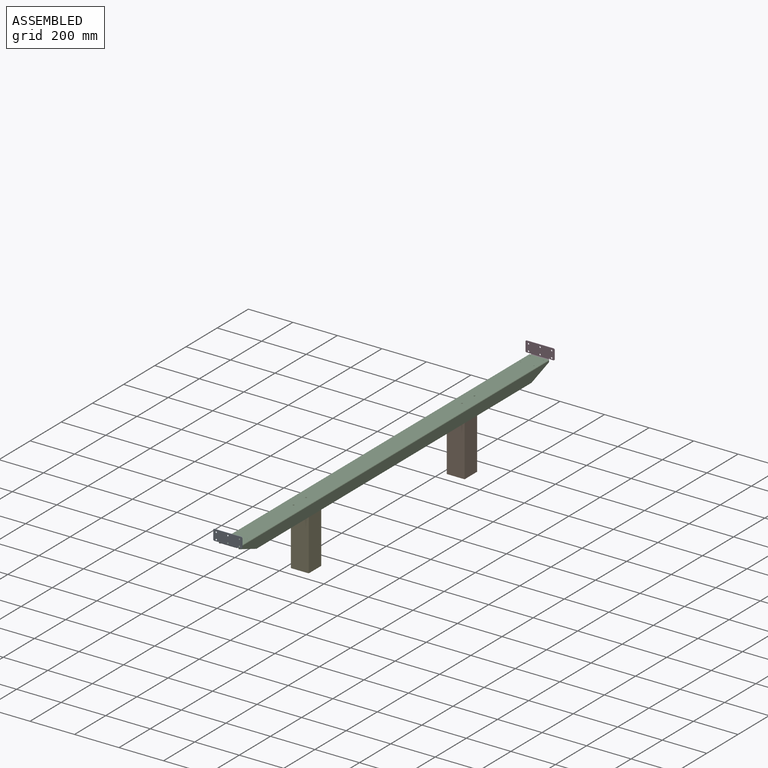
[diagram: assembled view]
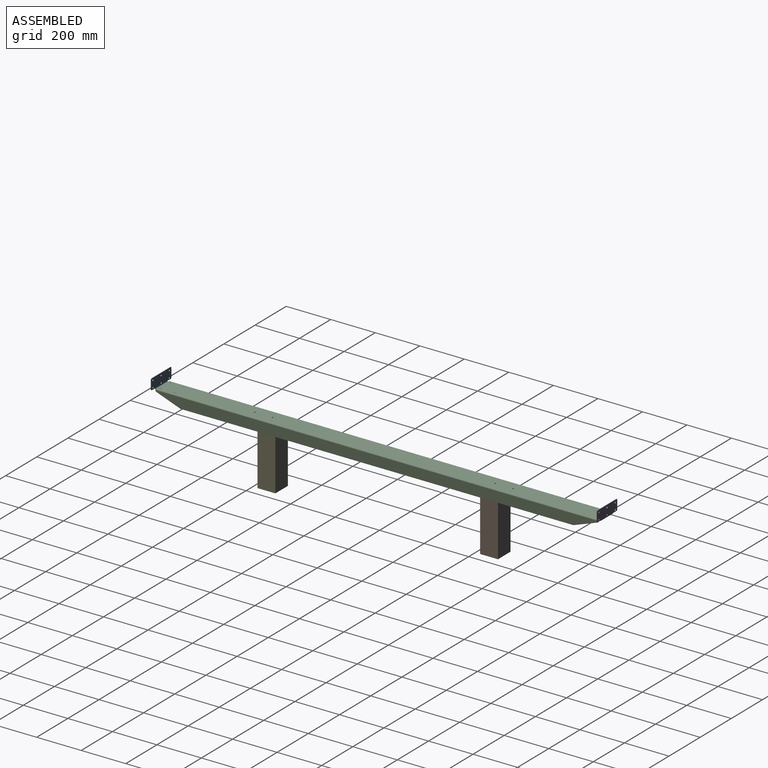
[diagram: assembled view, second angle]
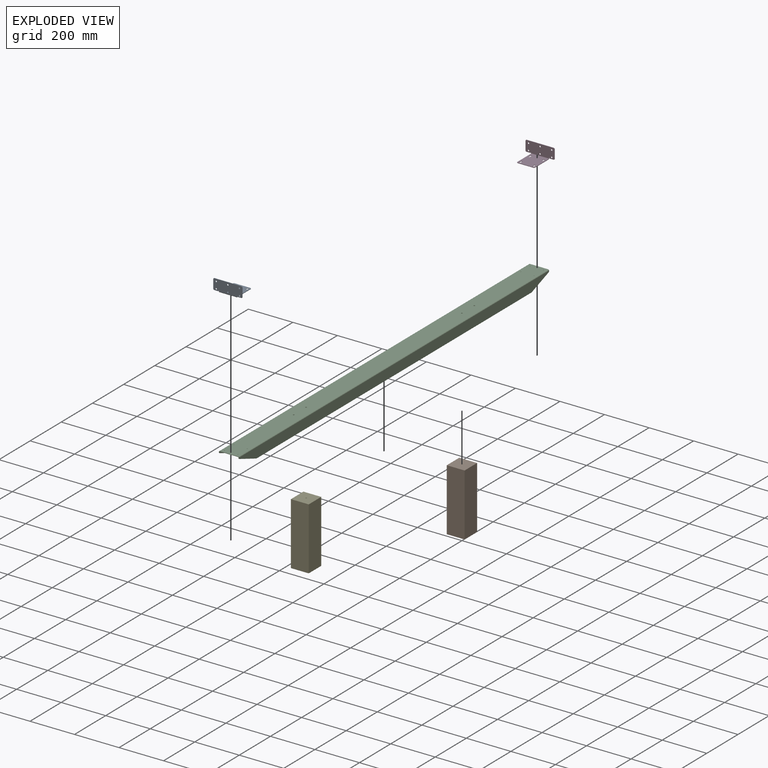
[diagram: exploded view]
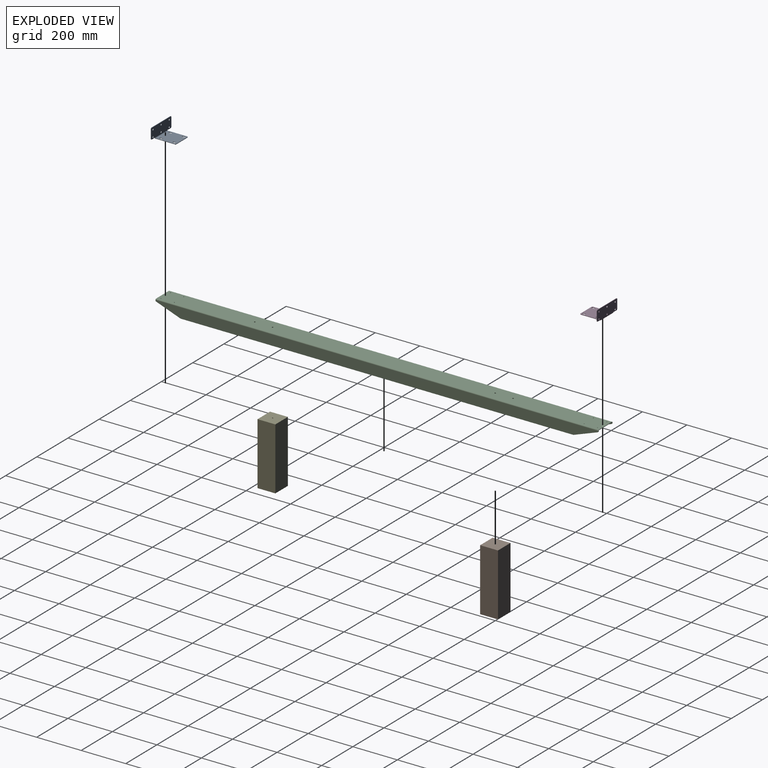
[diagram: exploded view, second angle]
ASSEMBLY  parts=5 mates=4
PART A: 68 faces, bbox 130x95x52 mm
  f0: plane 8.5x2mm, normal (1,0,0), area 17mm2, adj f1,f18,f19,f20
  f1: cylinder r=3.25mm len=6.5mm, axis (0,0,1), area 20.4mm2, adj f0,f2,f19,f20
  f2: plane 8.5x2mm, normal (-1,0,0), area 17mm2, adj f1,f18,f19,f20
  f3: plane 8.5x2mm, normal (-1,0,0), area 17mm2, adj f4,f17,f19,f20
  f4: cylinder r=3.25mm len=6.5mm, axis (0,0,1), area 20.4mm2, adj f3,f5,f19,f20
  f5: plane 8.5x2mm, normal (1,0,0), area 17mm2, adj f4,f17,f19,f20
  f6: plane 8.5x2mm, normal (-1,0,0), area 17mm2, adj f7,f16,f19,f20
  f7: cylinder r=3.25mm len=6.5mm, axis (0,0,1), area 20.4mm2, adj f6,f8,f19,f20
  f8: plane 8.5x2mm, normal (1,0,0), area 17mm2, adj f7,f16,f19,f20
  f9: plane 8.5x2mm, normal (1,0,0), area 17mm2, adj f10,f15,f19,f20
  f10: cylinder r=3.25mm len=6.5mm, axis (0,0,1), area 20.4mm2, adj f9,f11,f19,f20
  f11: plane 8.5x2mm, normal (-1,0,0), area 17mm2, adj f10,f15,f19,f20
  f12: plane 86x2mm, normal (-1,0,0), area 172mm2, adj f19,f20,f22,f65
  f13: plane 86x2mm, normal (1,0,0), area 172mm2, adj f19,f20,f21,f64
  f14: plane 70x2mm, normal (0,1,0), area 140mm2, adj f19,f20,f21,f22
  f15: cylinder r=3.25mm len=6.5mm, axis (0,0,1), area 20.4mm2, adj f9,f11,f19,f20
  f16: cylinder r=3.25mm len=6.5mm, axis (0,0,1), area 20.4mm2, adj f6,f8,f19,f20
  f17: cylinder r=3.25mm len=6.5mm, axis (0,0,1), area 20.4mm2, adj f3,f5,f19,f20
  f18: cylinder r=3.25mm len=6.5mm, axis (0,0,1), area 20.4mm2, adj f0,f2,f19,f20
  f19: plane 91x80mm, normal (0,0,1), area 6915.5mm2, adj f0,f1,f2,f3,f4,f5,f6,f7
  f20: plane 91x80mm, normal (0,0,-1), area 6915.5mm2, adj f0,f1,f2,f3,f4,f5,f6,f7
  f21: cylinder r=5mm len=5mm, axis (0,0,1), area 15.7mm2, adj f13,f14,f19,f20
  f22: cylinder r=5mm len=5mm, axis (0,0,-1), area 15.7mm2, adj f12,f14,f19,f20
  f23: plane 17.88x2mm, normal (0,0,-1), area 35.8mm2, adj f24,f25,f56,f63
  f24: plane 130x48mm, normal (0,1,0), area 6003.5mm2, adj f23,f26,f27,f28,f29,f30,f31,f32
  f25: plane 130x48mm, normal (0,-1,0), area 6003.5mm2, adj f23,f26,f27,f28,f29,f30,f31,f32
  f26: plane 2x0.1mm, normal (0,0,1), area 0.2mm2, adj f24,f25,f27,f53
  f27: cylinder r=3.25mm len=6.5mm, axis (0,1,0), area 20.4mm2, adj f24,f25,f26,f28
  f28: plane 2x0.1mm, normal (0,0,-1), area 0.2mm2, adj f24,f25,f27,f53
  f29: plane 2x0.1mm, normal (0,0,1), area 0.2mm2, adj f24,f25,f30,f52
  f30: cylinder r=3.25mm len=6.5mm, axis (0,1,0), area 20.4mm2, adj f24,f25,f29,f31
  f31: plane 2x0.1mm, normal (0,0,-1), area 0.2mm2, adj f24,f25,f30,f52
  f32: plane 2x0.1mm, normal (0,0,-1), area 0.2mm2, adj f24,f25,f33,f51
  f33: cylinder r=3.25mm len=6.5mm, axis (0,1,0), area 20.4mm2, adj f24,f25,f32,f34
  f34: plane 2x0.1mm, normal (0,0,1), area 0.2mm2, adj f24,f25,f33,f51
  f35: plane 2x0.1mm, normal (0,0,-1), area 0.2mm2, adj f24,f25,f36,f50
  f36: cylinder r=3.25mm len=6.5mm, axis (0,1,0), area 20.4mm2, adj f24,f25,f35,f37
  f37: plane 2x0.1mm, normal (0,0,1), area 0.2mm2, adj f24,f25,f36,f50
  f38: plane 2x0.1mm, normal (0,0,1), area 0.2mm2, adj f24,f25,f39,f49
  f39: cylinder r=3.25mm len=6.5mm, axis (0,1,0), area 20.4mm2, adj f24,f25,f38,f40
  f40: plane 2x0.1mm, normal (0,0,-1), area 0.2mm2, adj f24,f25,f39,f49
  f41: plane 2x0.1mm, normal (0,0,-1), area 0.2mm2, adj f24,f25,f42,f48
  f42: cylinder r=3.25mm len=6.5mm, axis (0,1,0), area 20.4mm2, adj f24,f25,f41,f43
  f43: plane 2x0.1mm, normal (0,0,1), area 0.2mm2, adj f24,f25,f42,f48
  f44: plane 17.88x2mm, normal (0,0,-1), area 35.8mm2, adj f24,f25,f54,f59
  f45: plane 38x2mm, normal (-1,0,0), area 76mm2, adj f24,f25,f54,f57
  f46: plane 120x2mm, normal (0,0,1), area 240mm2, adj f24,f25,f55,f57
  f47: plane 38x2mm, normal (1,0,0), area 76mm2, adj f24,f25,f55,f56
  f48: cylinder r=3.25mm len=6.5mm, axis (0,1,0), area 20.4mm2, adj f24,f25,f41,f43
  f49: cylinder r=3.25mm len=6.5mm, axis (0,1,0), area 20.4mm2, adj f24,f25,f38,f40
  f50: cylinder r=3.25mm len=6.5mm, axis (0,1,0), area 20.4mm2, adj f24,f25,f35,f37
  f51: cylinder r=3.25mm len=6.5mm, axis (0,1,0), area 20.4mm2, adj f24,f25,f32,f34
  f52: cylinder r=3.25mm len=6.5mm, axis (0,1,0), area 20.4mm2, adj f24,f25,f29,f31
  f53: cylinder r=3.25mm len=6.5mm, axis (0,1,0), area 20.4mm2, adj f24,f25,f26,f28
  f54: cylinder r=5mm len=5mm, axis (0,-1,0), area 15.7mm2, adj f24,f25,f44,f45
  f55: cylinder r=5mm len=5mm, axis (0,1,0), area 15.7mm2, adj f24,f25,f46,f47
  f56: cylinder r=5mm len=5mm, axis (0,-1,0), area 15.7mm2, adj f23,f24,f25,f47
  f57: cylinder r=5mm len=5mm, axis (0,-1,0), area 15.7mm2, adj f24,f25,f45,f46
  f58: cylinder r=1.06mm len=2.13mm, axis (0,-1,0), area 6.7mm2, adj f24,f25,f59,f60
  f59: plane 2x2mm, normal (1,0,0), area 4mm2, adj f24,f25,f44,f58
  f60: plane 2x2mm, normal (-1,0,0), area 4mm2, adj f24,f25,f58,f65
  f61: cylinder r=1.06mm len=2.13mm, axis (0,-1,0), area 6.7mm2, adj f24,f25,f62,f63
  f62: plane 2x2mm, normal (1,0,0), area 4mm2, adj f24,f25,f61,f64
  f63: plane 2x2mm, normal (-1,0,0), area 4mm2, adj f23,f24,f25,f61
  f64: plane 4x4mm, normal (1,0,0), area 9.4mm2, adj f13,f62,f66,f67
  f65: plane 4x4mm, normal (-1,0,0), area 9.4mm2, adj f12,f60,f66,f67
  f66: cylinder r=4mm len=80mm, axis (1,0,0), area 502.7mm2, adj f20,f25,f64,f65
  f67: cylinder r=2mm len=80mm, axis (1,0,0), area 251.3mm2, adj f19,f24,f64,f65
PART B: 8 faces, bbox 80x80x280 mm
  f0: plane 280x80mm, normal (0,1,0), area 22400mm2, adj f1,f3,f4,f5
  f1: plane 280x80mm, normal (-1,0,0), area 22400mm2, adj f0,f2,f4,f5
  f2: plane 280x80mm, normal (0,-1,0), area 22400mm2, adj f1,f3,f4,f5
  f3: plane 280x80mm, normal (1,0,0), area 22400mm2, adj f0,f2,f4,f5
  f4: plane 80x80mm, normal (0,0,1), area 6380.4mm2, adj f0,f1,f2,f3,f6
  f5: plane 80x80mm, normal (0,0,-1), area 6400mm2, adj f0,f1,f2,f3
  f6: cylinder r=2.5mm len=25mm, axis (0,0,1), area 392.7mm2, adj f4,f7
  f7: plane 5x5mm, normal (0,0,1), area 19.6mm2, adj f6
PART C: 42 faces, bbox 90x1990x50 mm
  f0: plane 82x2mm, normal (0,1,0), area 164mm2, adj f14,f15,f26,f39
  f1: plane 82x2mm, normal (0,-1,0), area 164mm2, adj f14,f15,f25,f38
  f2: cylinder r=3.25mm len=6.5mm, axis (0,0,1), area 40.8mm2, adj f14,f15
  f3: cylinder r=3.25mm len=6.5mm, axis (0,0,1), area 40.8mm2, adj f14,f15
  f4: cylinder r=3.25mm len=6.5mm, axis (0,0,1), area 40.8mm2, adj f14,f15
  f5: cylinder r=3.25mm len=6.5mm, axis (0,0,1), area 40.8mm2, adj f14,f15
  f6: cylinder r=1.65mm len=3.3mm, axis (0,0,1), area 20.7mm2, adj f14,f15
  f7: cylinder r=1.65mm len=3.3mm, axis (0,0,1), area 20.7mm2, adj f14,f15
  f8: cylinder r=1.65mm len=3.3mm, axis (0,0,1), area 20.7mm2, adj f14,f15
  f9: cylinder r=1.65mm len=3.3mm, axis (0,0,1), area 20.7mm2, adj f14,f15
  f10: cylinder r=1.65mm len=3.3mm, axis (0,0,1), area 20.7mm2, adj f14,f15
  f11: cylinder r=1.65mm len=3.3mm, axis (0,0,1), area 20.7mm2, adj f14,f15
  f12: cylinder r=1.65mm len=3.3mm, axis (0,0,1), area 20.7mm2, adj f14,f15
  f13: cylinder r=1.65mm len=3.3mm, axis (0,0,1), area 20.7mm2, adj f14,f15
  f14: plane 1990x82mm, normal (0,0,1), area 162978.8mm2, adj f0,f1,f2,f3,f4,f5,f6,f7
  f15: plane 1990x82mm, normal (0,0,-1), area 162978.8mm2, adj f0,f1,f2,f3,f4,f5,f6,f7
  f16: plane 1764.71x2mm, normal (0,0,-1), area 3529.4mm2, adj f17,f20,f21,f22
  f17: plane 109.36x39.8mm, normal (0,0.34,-0.94), area 232.7mm2, adj f16,f21,f22,f24
  f18: plane 2x1.5mm, normal (0,1,0), area 3mm2, adj f21,f22,f24,f26
  f19: plane 2x1.5mm, normal (0,-1,0), area 3mm2, adj f21,f22,f23,f25
  f20: plane 109.36x39.8mm, normal (0,-0.34,-0.94), area 232.7mm2, adj f16,f21,f22,f23
  f21: plane 1990x46mm, normal (1,0,0), area 86917mm2, adj f16,f17,f18,f19,f20,f23,f24,f27
  f22: plane 1990x46mm, normal (-1,0,0), area 86917mm2, adj f16,f17,f18,f19,f20,f23,f24,f28
  f23: cylinder r=5mm len=4.7mm, axis (-1,0,0), area 12.2mm2, adj f19,f20,f21,f22
  f24: cylinder r=5mm len=4.7mm, axis (1,0,0), area 12.2mm2, adj f17,f18,f21,f22
  f25: plane 4x4mm, normal (0,-1,0), area 9.4mm2, adj f1,f19,f27,f28
  f26: plane 4x4mm, normal (0,1,0), area 9.4mm2, adj f0,f18,f27,f28
  f27: cylinder r=4mm len=1990mm, axis (0,-1,0), area 12503.5mm2, adj f14,f21,f25,f26
  f28: cylinder r=2mm len=1990mm, axis (0,-1,0), area 6251.8mm2, adj f15,f22,f25,f26
  f29: plane 2x1.5mm, normal (0,-1,0), area 3mm2, adj f34,f35,f37,f38
  f30: plane 2x1.5mm, normal (0,1,0), area 3mm2, adj f34,f35,f36,f39
  f31: plane 109.36x39.8mm, normal (0,0.34,-0.94), area 232.7mm2, adj f32,f34,f35,f36
  f32: plane 1764.71x2mm, normal (0,0,-1), area 3529.4mm2, adj f31,f33,f34,f35
  f33: plane 109.36x39.8mm, normal (0,-0.34,-0.94), area 232.7mm2, adj f32,f34,f35,f37
  f34: plane 1990x46mm, normal (-1,0,0), area 86917mm2, adj f29,f30,f31,f32,f33,f36,f37,f40
  f35: plane 1990x46mm, normal (1,0,0), area 86917mm2, adj f29,f30,f31,f32,f33,f36,f37,f41
  f36: cylinder r=5mm len=4.7mm, axis (1,0,0), area 12.2mm2, adj f30,f31,f34,f35
  f37: cylinder r=5mm len=4.7mm, axis (-1,0,0), area 12.2mm2, adj f29,f33,f34,f35
  f38: plane 4x4mm, normal (0,-1,0), area 9.4mm2, adj f1,f29,f40,f41
  f39: plane 4x4mm, normal (0,1,0), area 9.4mm2, adj f0,f30,f40,f41
  f40: cylinder r=4mm len=1990mm, axis (0,-1,0), area 12503.5mm2, adj f14,f34,f38,f39
  f41: cylinder r=2mm len=1990mm, axis (0,-1,0), area 6251.8mm2, adj f15,f35,f38,f39
PART D: same geometry as A
PART E: same geometry as B
PLACE A t=(0,-403.71,304)mm
PLACE B t=(-53.63,-15.97,0)mm
PLACE C t=(130.54,-500,282)mm
PLACE D rot(axis=(0,0,1),180deg) t=(0,-596.29,304)mm
PLACE E t=(-53.63,-1015.97,0)mm
MATE fastened C.f9 <-> A.f19  axis (0,0,-1) through (-30,-1480,280)mm
MATE fastened B.f6 <-> C.f4  axis (0,0,1) through (0,0,280)mm
MATE fastened C.f3 <-> E.f6  axis (0,0,-1) through (0,-1000,280)mm
MATE fastened D.f19 <-> C.f13  axis (0,0,1) through (30,480,280)mm
